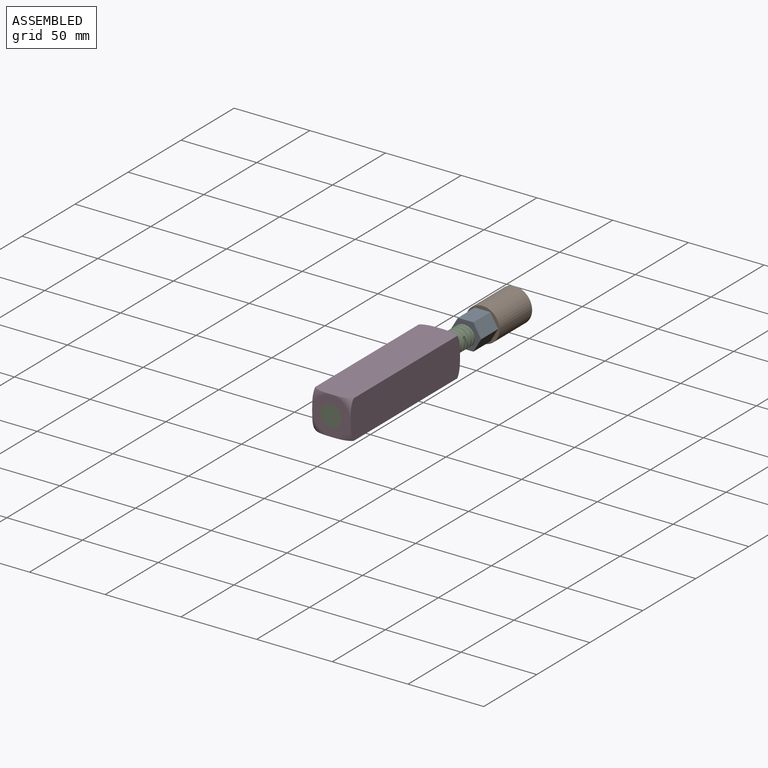
[diagram: assembled view]
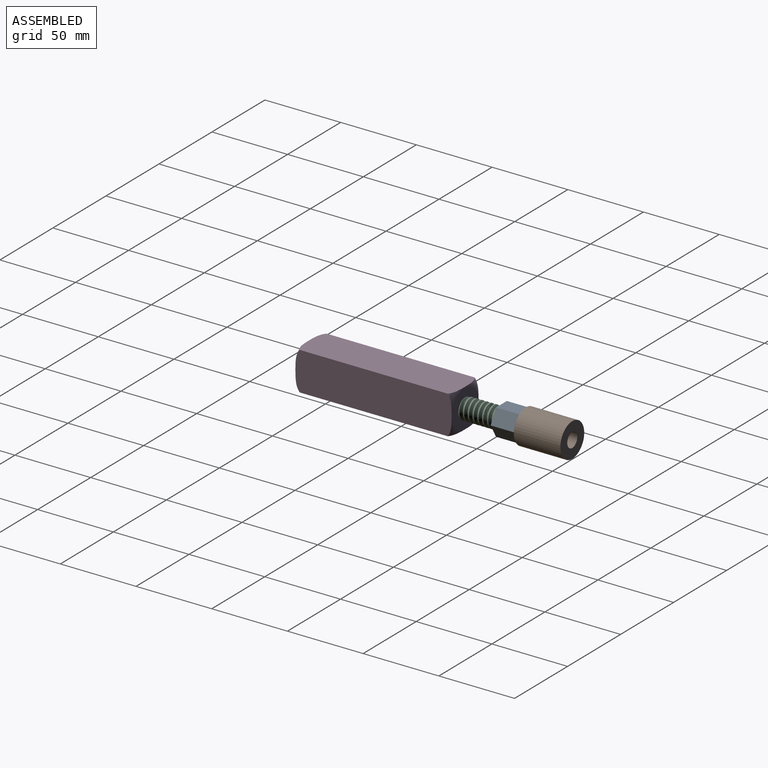
[diagram: assembled view, second angle]
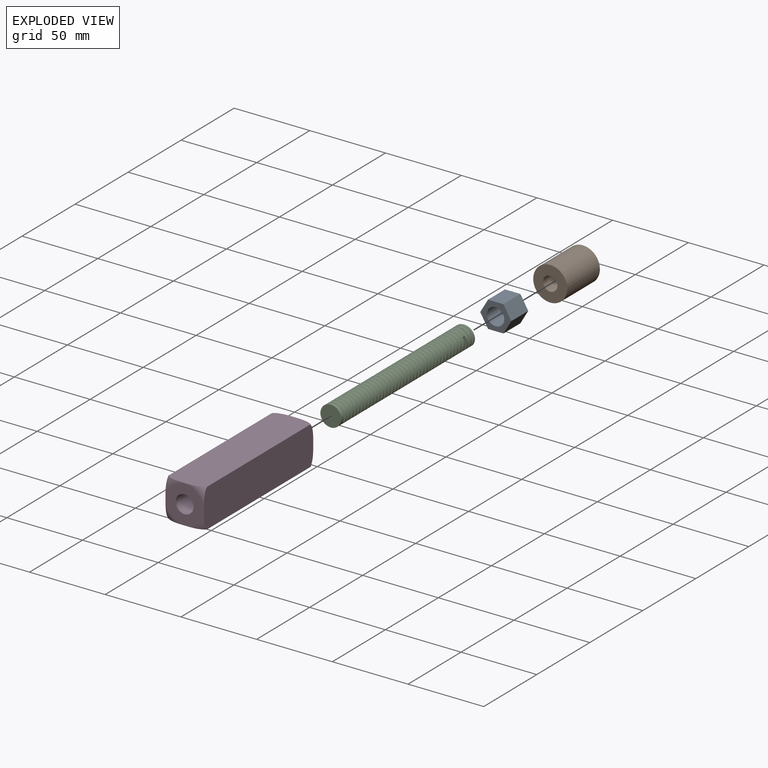
[diagram: exploded view]
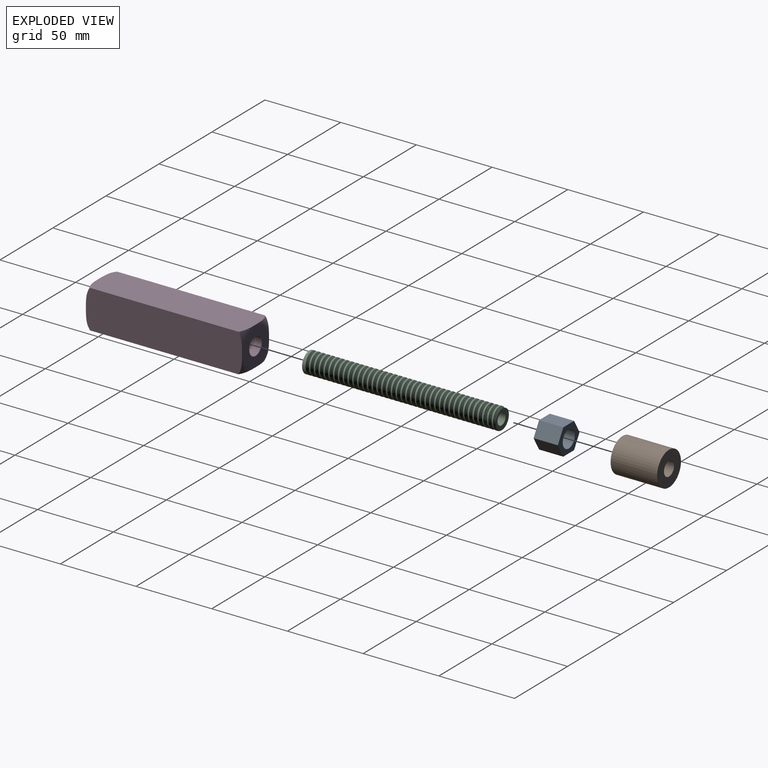
[diagram: exploded view, second angle]
ASSEMBLY  parts=4 mates=6
PART A: 9 faces, bbox 20.5x16x17.5 mm
  f0: plane 16x10.16mm, normal (0,0,1), area 162.6mm2, adj f1,f5,f6,f7
  f1: plane 16x8.75mm, normal (-0.86,0,0.51), area 162.6mm2, adj f0,f2,f6,f7
  f2: plane 16x8.75mm, normal (-0.86,0,-0.51), area 162.6mm2, adj f1,f3,f6,f7
  f3: plane 16x10.16mm, normal (0,0,-1), area 162.6mm2, adj f2,f4,f6,f7
  f4: plane 16x8.75mm, normal (0.86,0,-0.51), area 162.6mm2, adj f3,f5,f6,f7
  f5: plane 16x8.75mm, normal (0.86,0,0.51), area 162.6mm2, adj f0,f4,f6,f7
  f6: plane 20.48x17.51mm, normal (0,-1,0), area 165.5mm2, adj f0,f1,f2,f3,f4,f5,f8
  f7: plane 20.48x17.51mm, normal (0,1,0), area 165.5mm2, adj f0,f1,f2,f3,f4,f5,f8
  f8: cylinder r=5.72mm len=16mm, axis (0,1,0), area 574.9mm2, adj f6,f7
PART B: 4 faces, bbox 22.5x30.7x22.5 mm
  f0: cylinder r=4.76mm len=30.73mm, axis (0,1,0), area 918.8mm2, adj f2,f3
  f1: cylinder r=11.26mm len=30.73mm, axis (0,1,0), area 2174.2mm2, adj f2,f3
  f2: plane 22.52x22.52mm, normal (0,-1,0), area 327.1mm2, adj f0,f1
  f3: plane 22.52x22.52mm, normal (0,1,0), area 327.1mm2, adj f0,f1
PART C: 47 faces, bbox 14.7x129.4x16.8 mm
  f0: cylinder r=6.86mm len=13.72mm, axis (0,1,0), area 105.4mm2, adj f1,f40,f44,f45,f46
  f1: cylinder r=6.86mm len=13.72mm, axis (0,1,0), area 43.8mm2, adj f0,f2,f44,f45
  f2: cylinder r=6.86mm len=13.72mm, axis (0,1,0), area 43.8mm2, adj f1,f3,f44,f45
  f3: cylinder r=6.86mm len=13.72mm, axis (0,1,0), area 43.8mm2, adj f2,f4,f44,f45
  f4: cylinder r=6.86mm len=13.72mm, axis (0,1,0), area 43.8mm2, adj f3,f5,f44,f45
  f5: cylinder r=6.86mm len=13.72mm, axis (0,1,0), area 43.8mm2, adj f4,f6,f44,f45
  f6: cylinder r=6.86mm len=13.72mm, axis (0,1,0), area 43.8mm2, adj f5,f7,f44,f45
  f7: cylinder r=6.86mm len=13.72mm, axis (0,1,0), area 43.8mm2, adj f6,f8,f44,f45
  f8: cylinder r=6.86mm len=13.72mm, axis (0,1,0), area 43.8mm2, adj f7,f9,f44,f45
  f9: cylinder r=6.86mm len=13.72mm, axis (0,1,0), area 43.8mm2, adj f8,f10,f44,f45
  f10: cylinder r=6.86mm len=13.72mm, axis (0,1,0), area 43.8mm2, adj f9,f11,f44,f45
  f11: cylinder r=6.86mm len=13.72mm, axis (0,1,0), area 43.8mm2, adj f10,f12,f44,f45
  f12: cylinder r=6.86mm len=13.72mm, axis (0,1,0), area 43.8mm2, adj f11,f13,f44,f45
  f13: cylinder r=6.86mm len=13.72mm, axis (0,1,0), area 43.8mm2, adj f12,f14,f44,f45
  f14: cylinder r=6.86mm len=13.72mm, axis (0,1,0), area 43.8mm2, adj f13,f15,f44,f45
  f15: cylinder r=6.86mm len=13.72mm, axis (0,1,0), area 43.8mm2, adj f14,f16,f44,f45
  f16: cylinder r=6.86mm len=13.72mm, axis (0,1,0), area 43.8mm2, adj f15,f17,f44,f45
  f17: cylinder r=6.86mm len=13.72mm, axis (0,1,0), area 43.8mm2, adj f16,f18,f44,f45
  f18: cylinder r=6.86mm len=13.72mm, axis (0,1,0), area 43.8mm2, adj f17,f19,f44,f45
  f19: cylinder r=6.86mm len=13.72mm, axis (0,1,0), area 43.8mm2, adj f18,f20,f44,f45
  f20: cylinder r=6.86mm len=13.72mm, axis (0,1,0), area 43.8mm2, adj f19,f21,f44,f45
  f21: cylinder r=6.86mm len=13.72mm, axis (0,1,0), area 43.8mm2, adj f20,f22,f44,f45
  f22: cylinder r=6.86mm len=13.72mm, axis (0,1,0), area 43.8mm2, adj f21,f23,f44,f45
  f23: cylinder r=6.86mm len=13.72mm, axis (0,1,0), area 43.8mm2, adj f22,f24,f44,f45
  f24: cylinder r=6.86mm len=13.72mm, axis (0,1,0), area 43.8mm2, adj f23,f25,f44,f45
  f25: cylinder r=6.86mm len=13.72mm, axis (0,1,0), area 43.8mm2, adj f24,f26,f44,f45
  f26: cylinder r=6.86mm len=13.72mm, axis (0,1,0), area 43.8mm2, adj f25,f27,f44,f45
  f27: cylinder r=6.86mm len=13.72mm, axis (0,1,0), area 43.8mm2, adj f26,f28,f44,f45
  f28: cylinder r=6.86mm len=13.72mm, axis (0,1,0), area 43.8mm2, adj f27,f29,f44,f45
  f29: cylinder r=6.86mm len=13.72mm, axis (0,1,0), area 43.8mm2, adj f28,f30,f44,f45
  f30: cylinder r=6.86mm len=13.72mm, axis (0,1,0), area 43.8mm2, adj f29,f31,f44,f45
  f31: cylinder r=6.86mm len=13.72mm, axis (0,1,0), area 43.8mm2, adj f30,f32,f44,f45
  f32: cylinder r=6.86mm len=13.72mm, axis (0,1,0), area 43.8mm2, adj f31,f33,f44,f45
  f33: cylinder r=6.86mm len=13.72mm, axis (0,1,0), area 43.8mm2, adj f32,f34,f44,f45
  f34: cylinder r=6.86mm len=13.72mm, axis (0,1,0), area 43.8mm2, adj f33,f35,f44,f45
  f35: cylinder r=6.86mm len=13.72mm, axis (0,1,0), area 43.8mm2, adj f34,f36,f44,f45
  f36: cylinder r=6.86mm len=13.72mm, axis (0,1,0), area 43.8mm2, adj f35,f37,f44,f45
  f37: cylinder r=6.86mm len=13.72mm, axis (0,1,0), area 43.8mm2, adj f36,f38,f44,f45
  f38: cylinder r=6.86mm len=13.72mm, axis (0,1,0), area 43.8mm2, adj f37,f39,f44,f45
  f39: cylinder r=6.86mm len=13.72mm, axis (0,1,0), area 36.8mm2, adj f38,f41,f44,f45
  f40: plane 13.72x13.72mm, normal (0,-1,0), area 147.8mm2, adj f0
  f41: plane 13.83x13.4mm, normal (0,1,0), area 77.3mm2, adj f39,f42,f44,f45
  f42: cylinder r=3.81mm len=101.6mm, axis (0,1,0), area 2432.2mm2, adj f41,f43
  f43: plane 7.62x7.62mm, normal (0,1,0), area 45.6mm2, adj f42
  f44: bspline ~127.55x15.84mm, area 3187.1mm2, adj f0,f1,f2,f3,f4,f5,f6,f7
  f45: bspline ~126.49x15.84mm, area 3166.9mm2, adj f0,f1,f2,f3,f4,f5,f6,f7
  f46: plane 2.16x1.87mm, normal (-0.02,0,1), area 2mm2, adj f0,f44,f45
PART D: 9 faces, bbox 43.2x43.2x103.2 mm
  f0: plane 103.16x25.41mm, normal (-1,0,0), area 2590.5mm2, adj f2,f3,f4,f6
  f1: plane 103.16x25.41mm, normal (1,0,0), area 2590.2mm2, adj f2,f3,f4,f6
  f2: plane 103.16x25.41mm, normal (0,-1,0), area 2590.5mm2, adj f0,f1,f4,f6
  f3: plane 103.16x25.41mm, normal (0,1,0), area 2590.5mm2, adj f0,f1,f4,f6
  f4: torus R=12.25mm, axis (0,0,-1), area 182.2mm2, adj f0,f1,f2,f3,f5
  f5: plane 24.49x24.49mm, normal (0,0,1), area 361mm2, adj f4,f8
  f6: torus R=12.25mm, axis (0,0,-1), area 183.9mm2, adj f0,f1,f2,f3,f7
  f7: plane 24.49x24.49mm, normal (0,0,-1), area 361mm2, adj f6,f8
  f8: cylinder r=5.92mm len=103.19mm, axis (0,0,-1), area 3837.2mm2, adj f5,f7
PLACE A t=(32.3,-76.36,-15.35)mm
PLACE B t=(30.32,-45.63,-26.2)mm
PLACE C t=(29.52,-92.36,-15.35)mm
PLACE D rot(axis=(-1,0,0),90deg) t=(-17.69,-154.38,6.71)mm
MATE planar C.f42 <-> A.f8  axis (0,1,0) through (-12.44,-92.36,19.08)mm
MATE planar A.f8 <-> B.f0  axis (0,1,0) through (-12.44,-76.36,19.08)mm
MATE planar C.f42 <-> A.f8  axis (0,1,0) through (-12.44,-92.36,19.08)mm
MATE planar D.f8 <-> C.f0  axis (0,-1,0) through (-12.11,-219.36,19.41)mm
MATE planar A.f7 <-> B.f0  axis (0,1,0) through (-12.34,-76.36,19.26)mm
MATE planar B.f0 <-> A.f8  axis (0,1,0) through (-12.44,-76.36,19.08)mm
